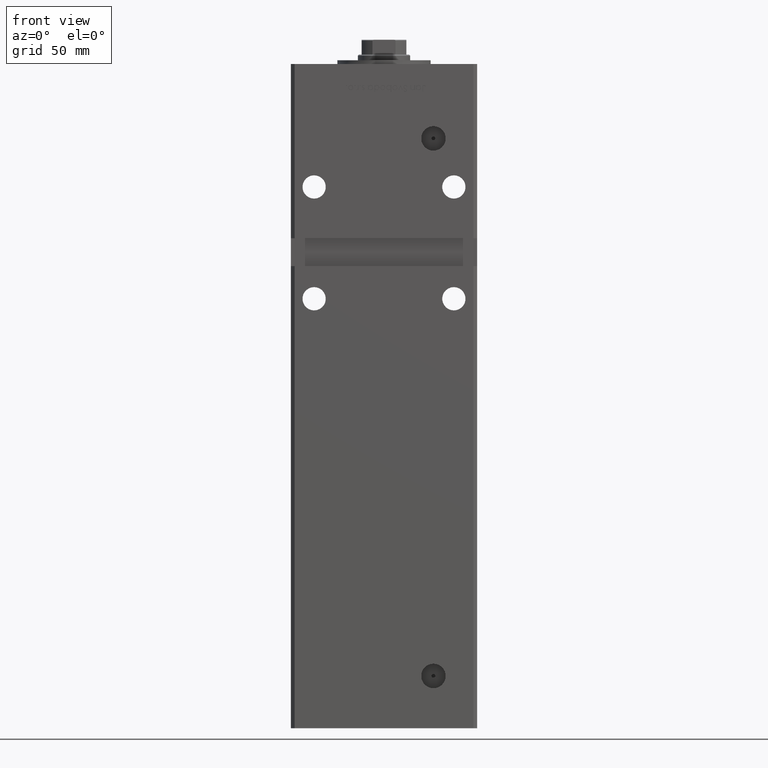
[diagram: clean part render]
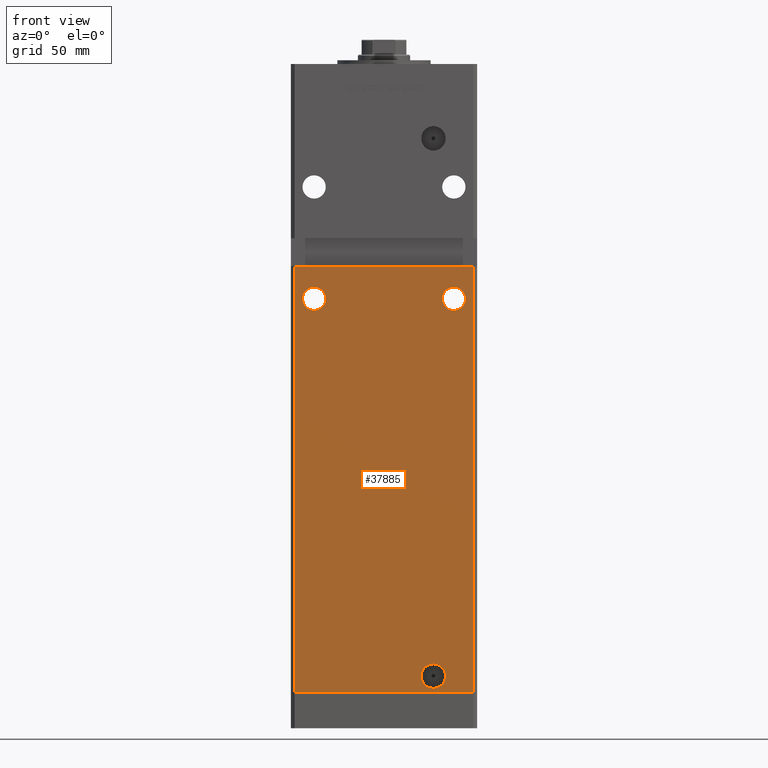
[diagram: same view with one face highlighted and labeled with its STEP entity id]
A machine part, front view. The second image highlights one B-rep face of the part: STEP entity #37885.
In plain terms, the highlighted planar face has unit normal (0, 1, 0).
Its self-contained STEP definition (entity closure, byte-faithful):
#253 = ORIENTED_EDGE ( 'NONE', *, *, #40495, .T. ) ;
#366 = EDGE_CURVE ( 'NONE', #51423, #6347, #2317, .T. ) ;
#1348 = DIRECTION ( 'NONE',  ( 0.000000000000000000, 1.000000000000000000, 0.000000000000000000 ) ) ;
#1440 = ORIENTED_EDGE ( 'NONE', *, *, #37968, .T. ) ;
#2302 = EDGE_LOOP ( 'NONE', ( #9118, #22008 ) ) ;
#2317 = LINE ( 'NONE', #26501, #13949 ) ;
#3918 = FACE_OUTER_BOUND ( 'NONE', #11128, .T. ) ;
#4335 = VERTEX_POINT ( 'NONE', #12851 ) ;
#4451 = FACE_BOUND ( 'NONE', #29362, .T. ) ;
#5877 = VECTOR ( 'NONE', #36836, 1000.000000000000000 ) ;
#6347 = VERTEX_POINT ( 'NONE', #32418 ) ;
#6359 = DIRECTION ( 'NONE',  ( 0.000000000000000000, 0.000000000000000000, -1.000000000000000000 ) ) ;
#6752 = DIRECTION ( 'NONE',  ( 0.000000000000000000, 0.000000000000000000, -1.000000000000000000 ) ) ;
#7215 = AXIS2_PLACEMENT_3D ( 'NONE', #9158, #1348, #26063 ) ;
#7317 = CARTESIAN_POINT ( 'NONE',  ( 37.50000000000000000, -43.50000000000000000, 211.5000000000000000 ) ) ;
#9118 = ORIENTED_EDGE ( 'NONE', *, *, #9948, .F. ) ;
#9158 = CARTESIAN_POINT ( 'NONE',  ( -37.50000000000000000, -43.50000000000000000, 211.5000000000000000 ) ) ;
#9439 = AXIS2_PLACEMENT_3D ( 'NONE', #42890, #30520, #14425 ) ;
#9645 = ORIENTED_EDGE ( 'NONE', *, *, #10136, .T. ) ;
#9948 = EDGE_CURVE ( 'NONE', #42905, #20406, #26083, .T. ) ;
#10057 = CARTESIAN_POINT ( 'NONE',  ( 37.50000000000000000, -43.50000000000000000, 211.5000000000000000 ) ) ;
#10136 = EDGE_CURVE ( 'NONE', #16581, #35345, #25230, .T. ) ;
#10225 = ORIENTED_EDGE ( 'NONE', *, *, #366, .F. ) ;
#10653 = EDGE_LOOP ( 'NONE', ( #1440, #25472 ) ) ;
#11128 = EDGE_LOOP ( 'NONE', ( #40900, #10225, #253, #43431 ) ) ;
#12851 = CARTESIAN_POINT ( 'NONE',  ( 37.50000000000000000, -43.50000000000000000, 205.2500000000000000 ) ) ;
#13860 = VECTOR ( 'NONE', #15925, 1000.000000000000000 ) ;
#13919 = CARTESIAN_POINT ( 'NONE',  ( -37.50000000000000000, -43.50000000000000000, 205.2500000000000000 ) ) ;
#13949 = VECTOR ( 'NONE', #14696, 1000.000000000000000 ) ;
#14092 = VERTEX_POINT ( 'NONE', #45231 ) ;
#14425 = DIRECTION ( 'NONE',  ( 0.000000000000000000, 0.000000000000000000, 1.000000000000000000 ) ) ;
#14696 = DIRECTION ( 'NONE',  ( 1.000000000000000000, 0.000000000000000000, 0.000000000000000000 ) ) ;
#15925 = DIRECTION ( 'NONE',  ( -0.000000000000000000, -0.000000000000000000, -1.000000000000000000 ) ) ;
#16347 = AXIS2_PLACEMENT_3D ( 'NONE', #10057, #21337, #30445 ) ;
#16415 = CIRCLE ( 'NONE', #9439, 6.250000000000005329 ) ;
#16581 = VERTEX_POINT ( 'NONE', #47703 ) ;
#18085 = CIRCLE ( 'NONE', #48097, 6.250000000000005329 ) ;
#19099 = CARTESIAN_POINT ( 'NONE',  ( 26.49999999999998934, -43.50000000000000000, 2.420000000000013252 ) ) ;
#19909 = LINE ( 'NONE', #48648, #5877 ) ;
#19952 = LINE ( 'NONE', #52732, #13860 ) ;
#20406 = VERTEX_POINT ( 'NONE', #29946 ) ;
#21337 = DIRECTION ( 'NONE',  ( 0.000000000000000000, 1.000000000000000000, 0.000000000000000000 ) ) ;
#22008 = ORIENTED_EDGE ( 'NONE', *, *, #51543, .F. ) ;
#22659 = AXIS2_PLACEMENT_3D ( 'NONE', #26379, #43290, #6752 ) ;
#24071 = CIRCLE ( 'NONE', #16347, 6.250000000000005329 ) ;
#25230 = CIRCLE ( 'NONE', #7215, 6.250000000000005329 ) ;
#25472 = ORIENTED_EDGE ( 'NONE', *, *, #50667, .T. ) ;
#25567 = VERTEX_POINT ( 'NONE', #45715 ) ;
#26063 = DIRECTION ( 'NONE',  ( 0.000000000000000000, 0.000000000000000000, 1.000000000000000000 ) ) ;
#26083 = CIRCLE ( 'NONE', #22659, 6.579999999999994742 ) ;
#26379 = CARTESIAN_POINT ( 'NONE',  ( 26.49999999999998934, -43.50000000000000000, 9.000000000000007105 ) ) ;
#26501 = CARTESIAN_POINT ( 'NONE',  ( -49.99999999999998579, -43.50000000000000000, 228.9999999999999716 ) ) ;
#27186 = DIRECTION ( 'NONE',  ( 0.000000000000000000, 1.000000000000000000, 0.000000000000000000 ) ) ;
#28629 = PLANE ( 'NONE',  #45503 ) ;
#29362 = EDGE_LOOP ( 'NONE', ( #9645, #46957 ) ) ;
#29946 = CARTESIAN_POINT ( 'NONE',  ( 26.49999999999998934, -43.50000000000000000, 15.58000000000000362 ) ) ;
#30445 = DIRECTION ( 'NONE',  ( 0.000000000000000000, 0.000000000000000000, 1.000000000000000000 ) ) ;
#30520 = DIRECTION ( 'NONE',  ( 0.000000000000000000, 1.000000000000000000, 0.000000000000000000 ) ) ;
#32391 = FACE_BOUND ( 'NONE', #2302, .T. ) ;
#32418 = CARTESIAN_POINT ( 'NONE',  ( 47.99999999999998579, -43.50000000000000000, 228.9999999999999716 ) ) ;
#32934 = DIRECTION ( 'NONE',  ( 0.000000000000000000, 1.000000000000000000, 0.000000000000000000 ) ) ;
#33188 = FACE_BOUND ( 'NONE', #10653, .T. ) ;
#34513 = EDGE_CURVE ( 'NONE', #35345, #16581, #16415, .T. ) ;
#34586 = CARTESIAN_POINT ( 'NONE',  ( 26.49999999999998934, -43.50000000000000000, 9.000000000000007105 ) ) ;
#35018 = EDGE_CURVE ( 'NONE', #51912, #25567, #43485, .T. ) ;
#35345 = VERTEX_POINT ( 'NONE', #13919 ) ;
#36836 = DIRECTION ( 'NONE',  ( -0.000000000000000000, -0.000000000000000000, -1.000000000000000000 ) ) ;
#37885 = ADVANCED_FACE ( 'NONE', ( #4451, #33188, #32391, #3918 ), #28629, .F. ) ;
#37955 = DIRECTION ( 'NONE',  ( 1.000000000000000000, 0.000000000000000000, 0.000000000000000000 ) ) ;
#37968 = EDGE_CURVE ( 'NONE', #14092, #4335, #18085, .T. ) ;
#40233 = CARTESIAN_POINT ( 'NONE',  ( -47.99999999999998579, -43.50000000000000000, 0.000000000000000000 ) ) ;
#40495 = EDGE_CURVE ( 'NONE', #51423, #51912, #19909, .T. ) ;
#40900 = ORIENTED_EDGE ( 'NONE', *, *, #52494, .F. ) ;
#42638 = DIRECTION ( 'NONE',  ( 0.000000000000000000, -1.000000000000000000, 0.000000000000000000 ) ) ;
#42890 = CARTESIAN_POINT ( 'NONE',  ( -37.50000000000000000, -43.50000000000000000, 211.5000000000000000 ) ) ;
#42905 = VERTEX_POINT ( 'NONE', #19099 ) ;
#43290 = DIRECTION ( 'NONE',  ( 0.000000000000000000, -1.000000000000000000, 0.000000000000000000 ) ) ;
#43431 = ORIENTED_EDGE ( 'NONE', *, *, #35018, .T. ) ;
#43485 = LINE ( 'NONE', #50837, #46438 ) ;
#45231 = CARTESIAN_POINT ( 'NONE',  ( 37.50000000000000000, -43.50000000000000000, 217.7500000000000000 ) ) ;
#45335 = CARTESIAN_POINT ( 'NONE',  ( -47.99999999999998579, -43.50000000000000000, 228.9999999999999716 ) ) ;
#45503 = AXIS2_PLACEMENT_3D ( 'NONE', #49574, #32934, #48509 ) ;
#45715 = CARTESIAN_POINT ( 'NONE',  ( 47.99999999999998579, -43.50000000000000000, 0.000000000000000000 ) ) ;
#46438 = VECTOR ( 'NONE', #37955, 1000.000000000000000 ) ;
#46957 = ORIENTED_EDGE ( 'NONE', *, *, #34513, .T. ) ;
#47703 = CARTESIAN_POINT ( 'NONE',  ( -37.50000000000000000, -43.50000000000000000, 217.7500000000000000 ) ) ;
#48097 = AXIS2_PLACEMENT_3D ( 'NONE', #7317, #27186, #48140 ) ;
#48140 = DIRECTION ( 'NONE',  ( 0.000000000000000000, 0.000000000000000000, 1.000000000000000000 ) ) ;
#48509 = DIRECTION ( 'NONE',  ( 0.000000000000000000, -0.000000000000000000, 1.000000000000000000 ) ) ;
#48648 = CARTESIAN_POINT ( 'NONE',  ( -47.99999999999998579, -43.50000000000000000, 318.5000000000000000 ) ) ;
#49574 = CARTESIAN_POINT ( 'NONE',  ( -47.99999999999998579, -43.50000000000000000, 318.5000000000000000 ) ) ;
#49850 = CIRCLE ( 'NONE', #51536, 6.579999999999994742 ) ;
#50667 = EDGE_CURVE ( 'NONE', #4335, #14092, #24071, .T. ) ;
#50837 = CARTESIAN_POINT ( 'NONE',  ( -47.99999999999998579, -43.50000000000000000, 0.000000000000000000 ) ) ;
#51423 = VERTEX_POINT ( 'NONE', #45335 ) ;
#51536 = AXIS2_PLACEMENT_3D ( 'NONE', #34586, #42638, #6359 ) ;
#51543 = EDGE_CURVE ( 'NONE', #20406, #42905, #49850, .T. ) ;
#51912 = VERTEX_POINT ( 'NONE', #40233 ) ;
#52494 = EDGE_CURVE ( 'NONE', #6347, #25567, #19952, .T. ) ;
#52732 = CARTESIAN_POINT ( 'NONE',  ( 47.99999999999998579, -43.50000000000000000, 318.5000000000000000 ) ) ;